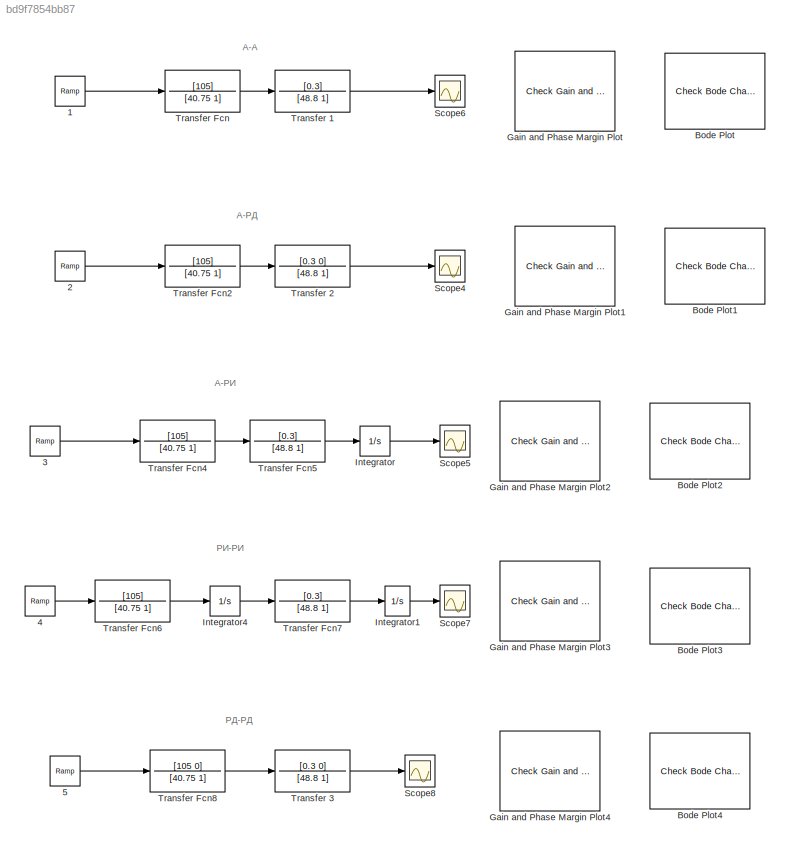
MODEL slx_bd9f7854bb87
KIND model
CONFIG AbsTol = auto
CONFIG EnableMultiTasking = off
CONFIG FixedStep = auto
CONFIG MaxStep = auto
CONFIG MinStep = auto
CONFIG RelTol = 1e-3
CONFIG SampleTimeConstraint = Unconstrained
CONFIG Solver = VariableStepAuto
CONFIG SolverName = VariableStepAuto
CONFIG StartTime = 0.0
CONFIG StopTime = 10
WORKSPACE source: mxarray member
WORKSPACE k = 0.5
BLOCK [Reference] 1  REF=simulink/Sources/Ramp
  Ports = [0, 1]
  SourceBlock = simulink/Sources/Ramp
  SourceProductBaseCode = SL
  SourceProductName = Simulink
  SourceType = Ramp
BLOCK [Reference] 2  REF=simulink/Sources/Ramp
  Ports = [0, 1]
  SourceBlock = simulink/Sources/Ramp
  SourceProductBaseCode = SL
  SourceProductName = Simulink
  SourceType = Ramp
BLOCK [Reference] 3  REF=simulink/Sources/Ramp
  Ports = [0, 1]
  SourceBlock = simulink/Sources/Ramp
  SourceProductBaseCode = SL
  SourceProductName = Simulink
  SourceType = Ramp
BLOCK [Reference] 4  REF=simulink/Sources/Ramp
  Ports = [0, 1]
  SourceBlock = simulink/Sources/Ramp
  SourceProductBaseCode = SL
  SourceProductName = Simulink
  SourceType = Ramp
BLOCK [Reference] 5  REF=simulink/Sources/Ramp
  Ports = [0, 1]
  SourceBlock = simulink/Sources/Ramp
  SourceProductBaseCode = SL
  SourceProductName = Simulink
  SourceType = Ramp
BLOCK [Reference] Bode Plot  REF=slctrlblks/Model Verification/Check Bode 
Characteristics
  InstantiateOnLoad = on
  Ports = []
  SourceBlock = slctrlblks/Model Verification/Check Bode \nCharacteristics
  SourceProductBaseCode = SD
  SourceProductName = Simulink Control Design
  SourceType = Checks_Bode
BLOCK [Reference] Bode Plot1  REF=slctrlblks/Model Verification/Check Bode 
Characteristics
  InstantiateOnLoad = on
  Ports = []
  SourceBlock = slctrlblks/Model Verification/Check Bode \nCharacteristics
  SourceProductBaseCode = SD
  SourceProductName = Simulink Control Design
  SourceType = Checks_Bode
BLOCK [Reference] Bode Plot2  REF=slctrlblks/Model Verification/Check Bode 
Characteristics
  InstantiateOnLoad = on
  Ports = []
  SourceBlock = slctrlblks/Model Verification/Check Bode \nCharacteristics
  SourceProductBaseCode = SD
  SourceProductName = Simulink Control Design
  SourceType = Checks_Bode
BLOCK [Reference] Bode Plot3  REF=slctrlblks/Model Verification/Check Bode 
Characteristics
  InstantiateOnLoad = on
  Ports = []
  SourceBlock = slctrlblks/Model Verification/Check Bode \nCharacteristics
  SourceProductBaseCode = SD
  SourceProductName = Simulink Control Design
  SourceType = Checks_Bode
BLOCK [Reference] Bode Plot4  REF=slctrlblks/Model Verification/Check Bode 
Characteristics
  InstantiateOnLoad = on
  Ports = []
  SourceBlock = slctrlblks/Model Verification/Check Bode \nCharacteristics
  SourceProductBaseCode = SD
  SourceProductName = Simulink Control Design
  SourceType = Checks_Bode
BLOCK [Reference] Gain and Phase Margin Plot  REF=slctrlblks/Model Verification/Check Gain and Phase Margins
  InstantiateOnLoad = on
  Ports = []
  SourceBlock = slctrlblks/Model Verification/Check Gain and Phase Margins
  SourceProductBaseCode = SD
  SourceProductName = Simulink Control Design
  SourceType = Checks_Margins
BLOCK [Reference] Gain and Phase Margin Plot1  REF=slctrlblks/Model Verification/Check Gain and Phase Margins
  InstantiateOnLoad = on
  Ports = []
  SourceBlock = slctrlblks/Model Verification/Check Gain and Phase Margins
  SourceProductBaseCode = SD
  SourceProductName = Simulink Control Design
  SourceType = Checks_Margins
BLOCK [Reference] Gain and Phase Margin Plot2  REF=slctrlblks/Model Verification/Check Gain and Phase Margins
  InstantiateOnLoad = on
  Ports = []
  SourceBlock = slctrlblks/Model Verification/Check Gain and Phase Margins
  SourceProductBaseCode = SD
  SourceProductName = Simulink Control Design
  SourceType = Checks_Margins
BLOCK [Reference] Gain and Phase Margin Plot3  REF=slctrlblks/Model Verification/Check Gain and Phase Margins
  InstantiateOnLoad = on
  Ports = []
  SourceBlock = slctrlblks/Model Verification/Check Gain and Phase Margins
  SourceProductBaseCode = SD
  SourceProductName = Simulink Control Design
  SourceType = Checks_Margins
BLOCK [Reference] Gain and Phase Margin Plot4  REF=slctrlblks/Model Verification/Check Gain and Phase Margins
  InstantiateOnLoad = on
  Ports = []
  SourceBlock = slctrlblks/Model Verification/Check Gain and Phase Margins
  SourceProductBaseCode = SD
  SourceProductName = Simulink Control Design
  SourceType = Checks_Margins
BLOCK [Integrator] Integrator
  Ports = [1, 1]
BLOCK [Integrator] Integrator1
  Ports = [1, 1]
BLOCK [Integrator] Integrator4
  Ports = [1, 1]
BLOCK [Scope] Scope4
  Floating = off
  NumInputPorts = 1
  Ports = [1]
  ScopeSpecificationString = Simulink.scopes.TimeScopeBlockCfg('CurrentConfiguration', extmgr.ConfigurationSet(extmgr.Configuration('Core','General UI',true),extmgr.Configuration('Core','Source UI',true),extmgr.Configuration('Sources','WiredSimulink',true,'DataLoggingVariableName','ScopeData1'),extmgr.Configuration('Visuals','Time Domain',true),extmgr.Configuration('Tools','Plot Navigation',true),extmgr.Configuration('Tools',...<+40ch>
BLOCK [Scope] Scope5
  Floating = off
  NumInputPorts = 1
  Ports = [1]
  ScopeSpecificationString = Simulink.scopes.TimeScopeBlockCfg('CurrentConfiguration', extmgr.ConfigurationSet(extmgr.Configuration('Core','General UI',true),extmgr.Configuration('Core','Source UI',true),extmgr.Configuration('Sources','WiredSimulink',true,'DataLoggingVariableName','ScopeData2'),extmgr.Configuration('Visuals','Time Domain',true),extmgr.Configuration('Tools','Plot Navigation',true),extmgr.Configuration('Tools',...<+40ch>
BLOCK [Scope] Scope6
  Floating = off
  NumInputPorts = 1
  Ports = [1]
  ScopeSpecificationString = Simulink.scopes.TimeScopeBlockCfg('CurrentConfiguration', extmgr.ConfigurationSet(extmgr.Configuration('Core','General UI',true),extmgr.Configuration('Core','Source UI',true),extmgr.Configuration('Sources','WiredSimulink',true,'DataLoggingVariableName','ScopeData1'),extmgr.Configuration('Visuals','Time Domain',true),extmgr.Configuration('Tools','Plot Navigation',true),extmgr.Configuration('Tools',...<+40ch>
BLOCK [Scope] Scope7
  Floating = off
  NumInputPorts = 1
  Ports = [1]
  ScopeSpecificationString = Simulink.scopes.TimeScopeBlockCfg('CurrentConfiguration', extmgr.ConfigurationSet(extmgr.Configuration('Core','General UI',true),extmgr.Configuration('Core','Source UI',true),extmgr.Configuration('Sources','WiredSimulink',true,'DataLoggingVariableName','ScopeData3'),extmgr.Configuration('Visuals','Time Domain',true),extmgr.Configuration('Tools','Plot Navigation',true),extmgr.Configuration('Tools',...<+40ch>
BLOCK [Scope] Scope8
  Floating = off
  NumInputPorts = 1
  Ports = [1]
  ScopeSpecificationString = Simulink.scopes.TimeScopeBlockCfg('CurrentConfiguration', extmgr.ConfigurationSet(extmgr.Configuration('Core','General UI',true),extmgr.Configuration('Core','Source UI',true),extmgr.Configuration('Sources','WiredSimulink',true,'DataLoggingVariableName','ScopeData4'),extmgr.Configuration('Visuals','Time Domain',true),extmgr.Configuration('Tools','Plot Navigation',true),extmgr.Configuration('Tools',...<+40ch>
BLOCK [TransferFcn] Transfer 1
  Denominator = [48.8 1]
  Numerator = [0.3]
BLOCK [TransferFcn] Transfer 2
  Denominator = [48.8 1]
  Numerator = [0.3 0]
BLOCK [TransferFcn] Transfer 3
  Denominator = [48.8 1]
  Numerator = [0.3 0]
BLOCK [TransferFcn] Transfer Fcn
  Denominator = [40.75 1]
  Numerator = [105]
BLOCK [TransferFcn] Transfer Fcn2
  Denominator = [40.75 1]
  Numerator = [105]
BLOCK [TransferFcn] Transfer Fcn4
  Denominator = [40.75 1]
  Numerator = [105]
BLOCK [TransferFcn] Transfer Fcn5
  Denominator = [48.8 1]
  Numerator = [0.3]
BLOCK [TransferFcn] Transfer Fcn6
  Denominator = [40.75 1]
  Numerator = [105]
BLOCK [TransferFcn] Transfer Fcn7
  Denominator = [48.8 1]
  Numerator = [0.3]
BLOCK [TransferFcn] Transfer Fcn8
  Denominator = [40.75 1]
  Numerator = [105 0]
ANNOTATION (root): А-А
ANNOTATION (root): А-РД
ANNOTATION (root): А-РИ
ANNOTATION (root): РД-РД
ANNOTATION (root): РИ-РИ
LINE 1:1 -> Transfer Fcn:1
LINE 2:1 -> Transfer Fcn2:1
LINE 3:1 -> Transfer Fcn4:1
LINE 4:1 -> Transfer Fcn6:1
LINE 5:1 -> Transfer Fcn8:1
LINE Integrator1:1 -> Scope7:1
LINE Integrator4:1 -> Transfer Fcn7:1
LINE Integrator:1 -> Scope5:1
LINE Transfer 1:1 -> Scope6:1
LINE Transfer 2:1 -> Scope4:1
LINE Transfer 3:1 -> Scope8:1
LINE Transfer Fcn2:1 -> Transfer 2:1
LINE Transfer Fcn4:1 -> Transfer Fcn5:1
LINE Transfer Fcn5:1 -> Integrator:1
LINE Transfer Fcn6:1 -> Integrator4:1
LINE Transfer Fcn7:1 -> Integrator1:1
LINE Transfer Fcn8:1 -> Transfer 3:1
LINE Transfer Fcn:1 -> Transfer 1:1
